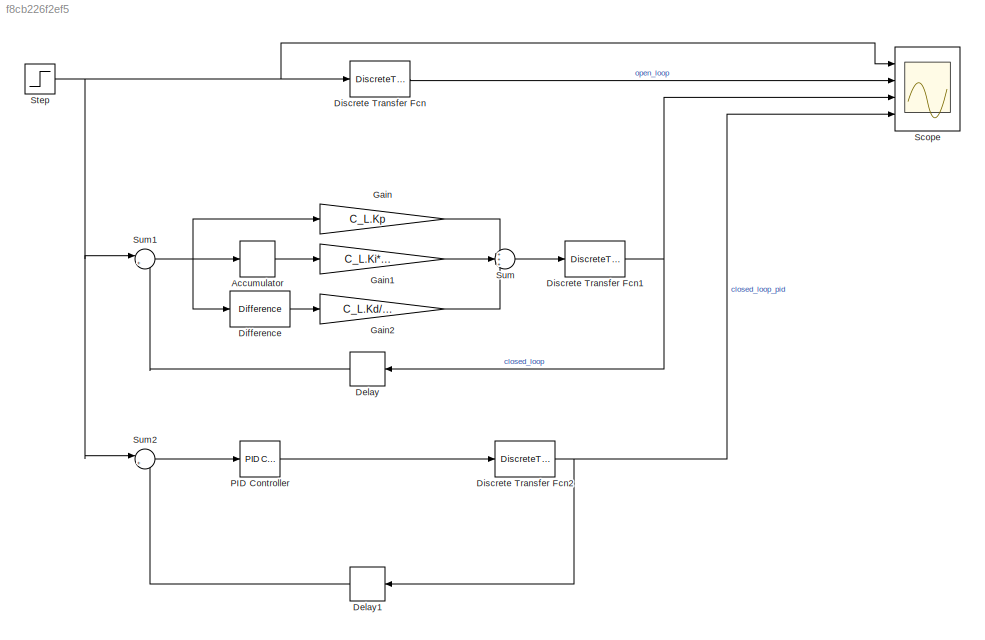
MODEL slx_f8cb226f2ef5
KIND model
CONFIG AbsTol = auto
CONFIG EnableMultiTasking = off
CONFIG FixedStep = auto
CONFIG MaxStep = auto
CONFIG MinStep = auto
CONFIG RelTol = 1e-3
CONFIG SampleTimeConstraint = Unconstrained
CONFIG SolverName = VariableStepAuto
CONFIG StartTime = 0.0
CONFIG StopTime = 3
BLOCK [DiscreteIntegrator] Accumulator
  ICPrevOutput = DiscIntNeverNeededParam
  ICPrevScaledInput = DiscIntNeverNeededParam
  InitialConditionSetting = Auto
  IntegratorMethod = Accumulation: Forward Euler
  Ports = [1, 1]
  SampleTime = 0.015
BLOCK [Delay] Delay
  DelayLength = 1
  InputPortMap = u0
  Ports = [1, 1]
  SampleTime = 0.015
BLOCK [Delay] Delay1
  DelayLength = 1
  InputPortMap = u0
  Ports = [1, 1]
  SampleTime = 0.015
BLOCK [Reference] Difference  REF=simulink/Discrete/Difference
  Ports = [1, 1]
  SourceBlock = simulink/Discrete/Difference
  SourceProductBaseCode = SL
  SourceType = Difference
BLOCK [DiscreteTransferFcn] Discrete Transfer Fcn
  Denominator = leftEstSmall.Denominator
  InputPortMap = u0
  Numerator = leftEstSmall.Numerator
  Ports = [1, 1]
  SampleTime = 0.015
BLOCK [DiscreteTransferFcn] Discrete Transfer Fcn1
  Denominator = leftEstSmall.Denominator
  InputPortMap = u0
  Numerator = leftEstSmall.Numerator
  Ports = [1, 1]
  SampleTime = 0.015
BLOCK [DiscreteTransferFcn] Discrete Transfer Fcn2
  Denominator = leftEstSmall.Denominator
  InputPortMap = u0
  Numerator = leftEstSmall.Numerator
  Ports = [1, 1]
  SampleTime = 0.015
BLOCK [Gain] Gain
  Gain = C_L.Kp
BLOCK [Gain] Gain1
  Gain = C_L.Ki*C_L.Ts
BLOCK [Gain] Gain2
  Gain = C_L.Kd/C_L.Ts
BLOCK [Reference] PID Controller  REF=pid_lib/PID Controller
  Ports = [1, 1]
  SourceBlock = pid_lib/PID Controller
  SourceProductBaseCode = SL
  SourceType = PID 1dof
BLOCK [Scope] Scope
  Floating = off
  NumInputPorts = 4
  Ports = [4]
  ScopeSpecificationString = Simulink.scopes.TimeScopeBlockCfg('CurrentConfiguration', extmgr.ConfigurationSet(extmgr.Configuration('Core','General UI',true),extmgr.Configuration('Core','Source UI',true),extmgr.Configuration('Sources','WiredSimulink',true),extmgr.Configuration('Visuals','Time Domain',true,'SerializedDisplays',{struct('MinYLimReal','-0.80231','MaxYLimReal','1.57559','YLabelReal','','MinYLimMag','0.00000','MaxY...<+1555ch>
BLOCK [Step] Step
  SampleTime = 0
BLOCK [Sum] Sum
  Inputs = +++
  Ports = [3, 1]
BLOCK [Sum] Sum1
  Inputs = |+-
  Ports = [2, 1]
BLOCK [Sum] Sum2
  Inputs = |+-
  Ports = [2, 1]
LINE Accumulator:1 -> Gain1:1
LINE Delay1:1 -> Sum2:2
LINE Delay:1 -> Sum1:2
LINE Difference:1 -> Gain2:1
NET Discrete Transfer Fcn1:1 -> Delay:1, Scope:3
NET Discrete Transfer Fcn2:1 -> Delay1:1, Scope:4
LINE Discrete Transfer Fcn:1 -> Scope:2
LINE Gain1:1 -> Sum:2
LINE Gain2:1 -> Sum:3
LINE Gain:1 -> Sum:1
LINE PID Controller:1 -> Discrete Transfer Fcn2:1
NET Step:1 -> Discrete Transfer Fcn:1, Scope:1, Sum1:1, Sum2:1
NET Sum1:1 -> Accumulator:1, Difference:1, Gain:1
LINE Sum2:1 -> PID Controller:1
LINE Sum:1 -> Discrete Transfer Fcn1:1
note: NET lines group one-source signal fan-out (src -> all destinations, sorted); 1:1 wires keep LINE
